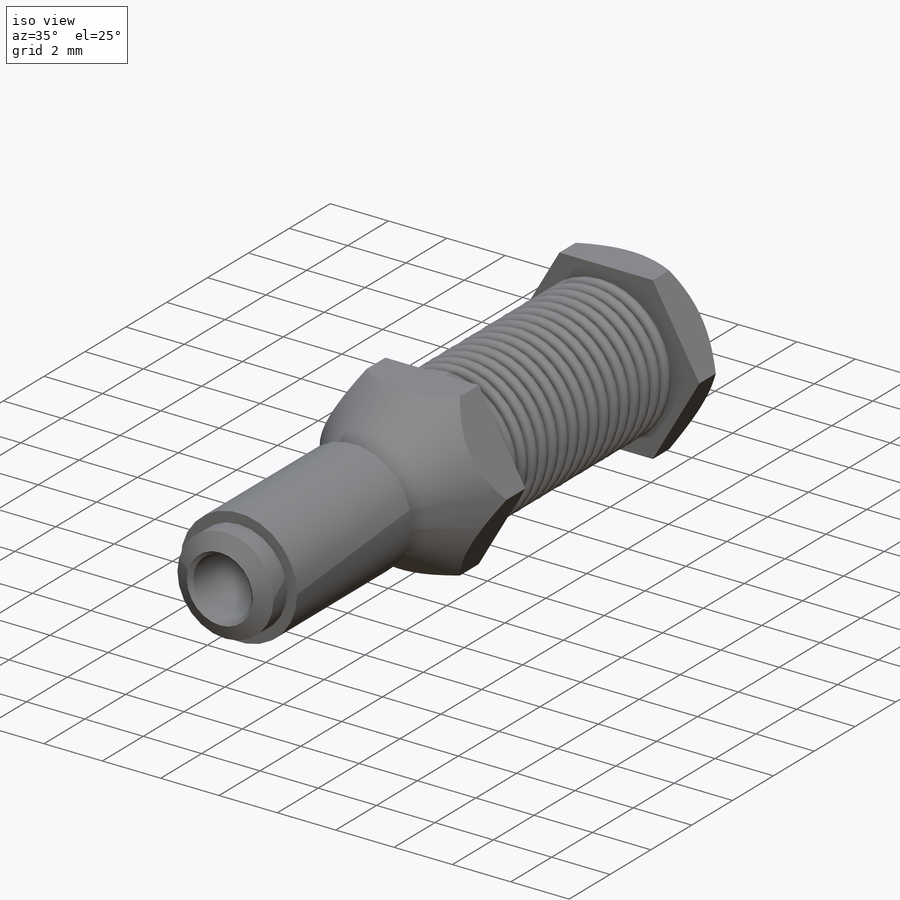
[diagram: iso view]
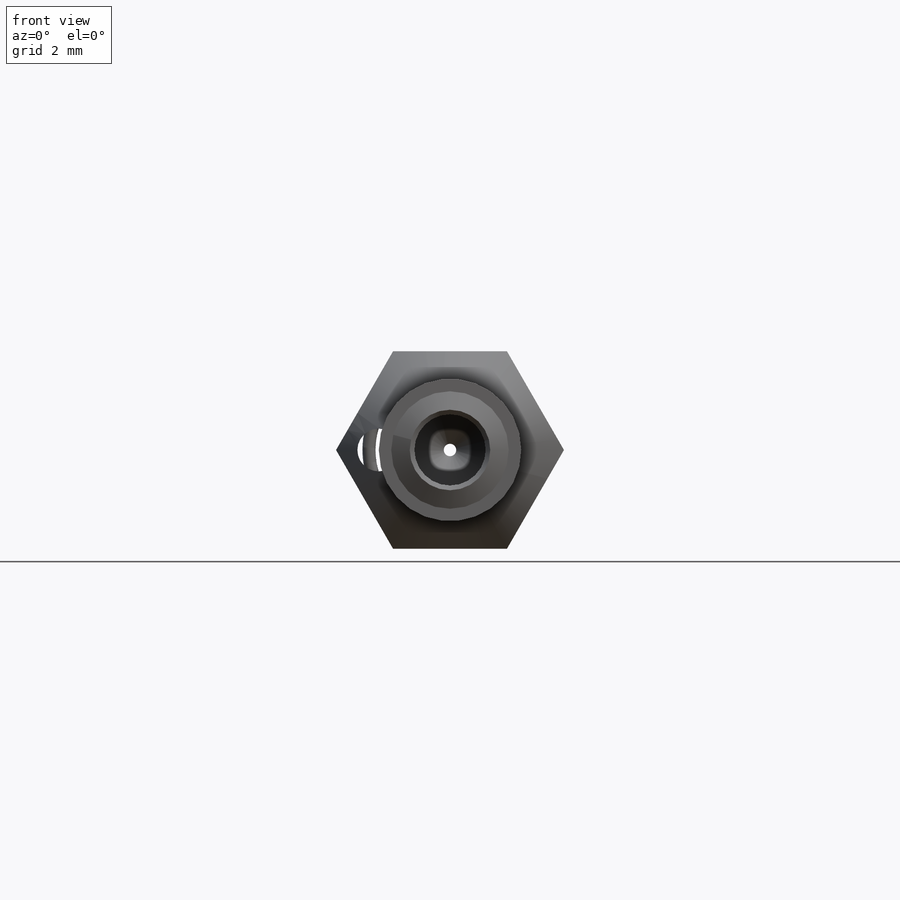
[diagram: front view]
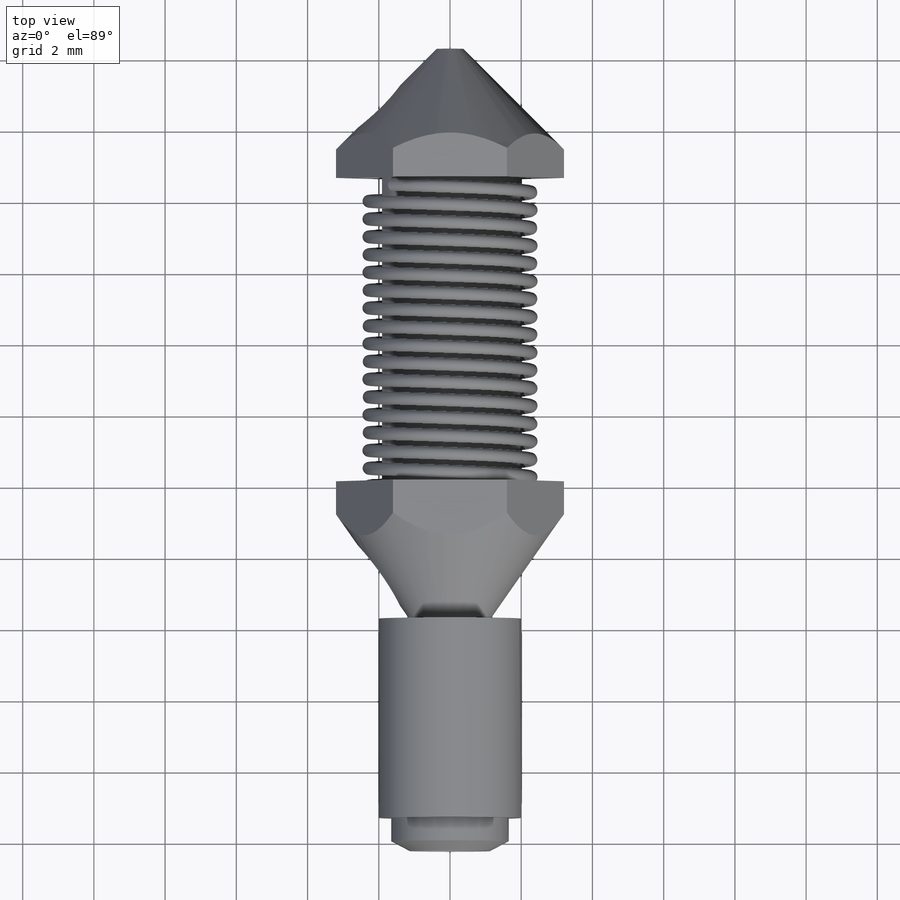
[diagram: top view]
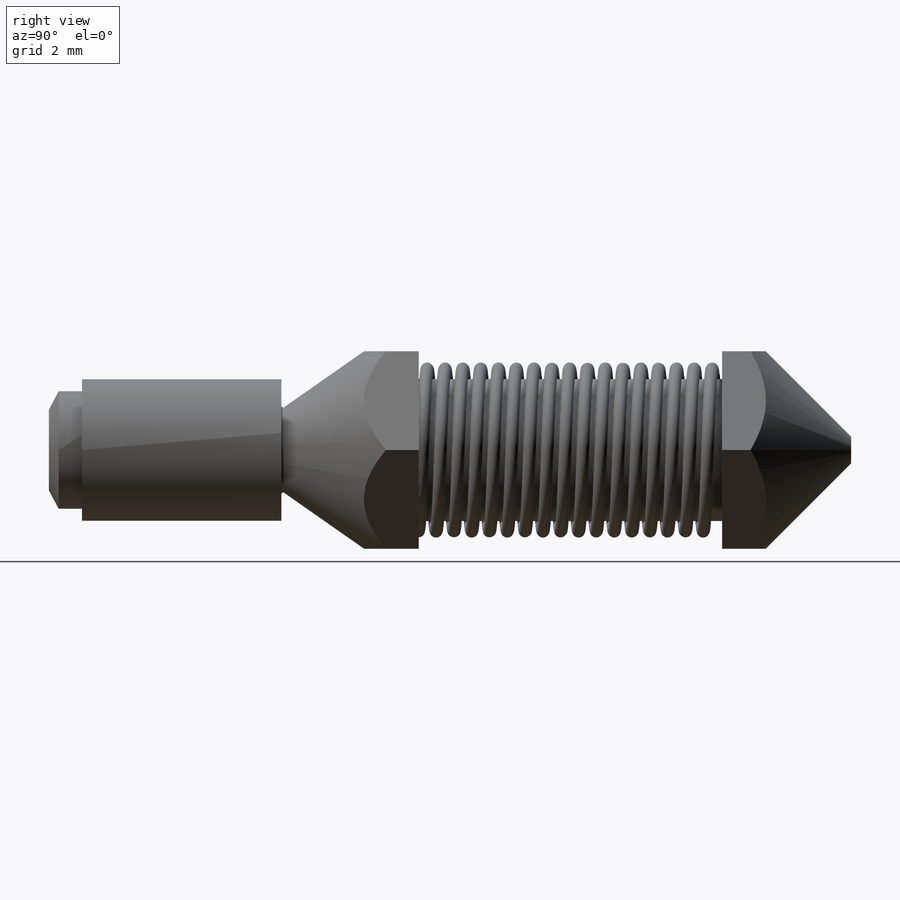
[diagram: right view]
SOLIDWORKS PART (.sldprt)
format: sldprt  version: not decoded by parser v0  size: 1,051,648 bytes
history: native  units: mm
features: sketch x5, cut_extrude x2, material x1, revolve x1, thread x1, fillet x1, helix x1, sweep x1 (+14 scaffold rows collapsed)
feature tree (27):
  scaffold x14  (default folders/planes/origin — collapsed)
  material  "AISI 316 Annealed Stainless Steel Bar (SS)"
  sketch  "Sketch1"  dims[c1.D1=1.0mm c1.D2=2.0mm c1.D3=4.0mm c1.D4=2.0mm c1.D5=0.3mm c1.D6=1.5mm c1.D7=~1.422214mm c2.D7=30.0deg c2.D8=~3.943667mm c3.D8=~158.575915deg c4.D8=0.3mm c4.D9=0.175mm c4.D10=8.0mm c4.3=3.0mm c4.D12=6.0mm c4.D13=~2.148502mm c5.D13=30.0deg c5.D14=0.5mm c5.D15=~0.255064mm c5.D16=0.5mm c6.D15=0.5mm c6.D8=~3.550704mm c7.D8=40.0deg c7.D13=~1.868999mm c8.D13=59.0deg c8.D8=0.375mm c8.D15=0.5mm c8.D3=~5.211047mm c8.D4=8.0mm c9.D3=2.0mm c9.D10=4.0mm c9.D12=~3.530719mm c9.D14=8.0mm c9.D16=0.5mm c9.D17=0.2mm c9.D18=~3.056902mm c9.D15=0.35mm c9.D4=5.6mm c10.D18=1.0mm c10.D12=~2.800621mm c11.D12=40.0deg c11.D7=~1.248213mm c12.D7=45.0deg c12.D12=~2.56227mm c13.D12=45.0deg c13.D19=0.7mm c13.D16=0.2mm c13.D17=0.2mm c13.D5=0.15mm c13.D11=2.7mm c14.D11=55.0deg c14.D20=1.2mm c15.D20=90.0deg c15.D14=0.0deg c16.D14=8.0mm c16.D16=2.5mm c17.D16=90.0deg c17.D17=~1.267949mm c17.D3=16.0mm c17.D6=0.2mm c17.D10=45.0deg c17.D14=3.5mm c18.D16=~2.133975mm c18.D8=0.375mm c18.D13=~0.787556mm c19.D13=149.0deg c20.D13=~17.348047mm c21.D13=152.0deg c22.D13=~0.632339mm c23.D13=~146.798799deg c24.D13=~0.529111mm c25.D13=118.0deg c25.D16=0.5mm c25.D17=0.5mm c25.D20=1.5mm c25.D21=~5.518852mm]
  revolve  "Revolve1"  [1 undecoded]
  thread  "Cosmetic Thread1"  Diameter=5.6mm  [1 undecoded]
  fillet  "Fillet1"  Radius=0.05mm
  sketch  "Sketch2"  dims[D1=1.2mm]
  cut_extrude  "Cut-Extrude1"  Depth=10mm
  sketch  "Sketch3"  dims[D1=6.4mm]
  cut_extrude  "Cut-Extrude2"  Depth=10mm
  sketch  "Sketch4"  dims[D1=0.36mm D2=0.1mm D3=0.1mm]
  sketch  "Sketch5"
  helix  "Helix/Spiral1"  Pitch=8.5mm
  sweep  "Sweep3"
decode coverage: 9 of 12 modeling features carry decoded parameters
note: ~ marks probable driven/reference dimensions
note: 2 parameter values undecoded
note: suppression state not decoded; provenance and decode notes live in map.json
